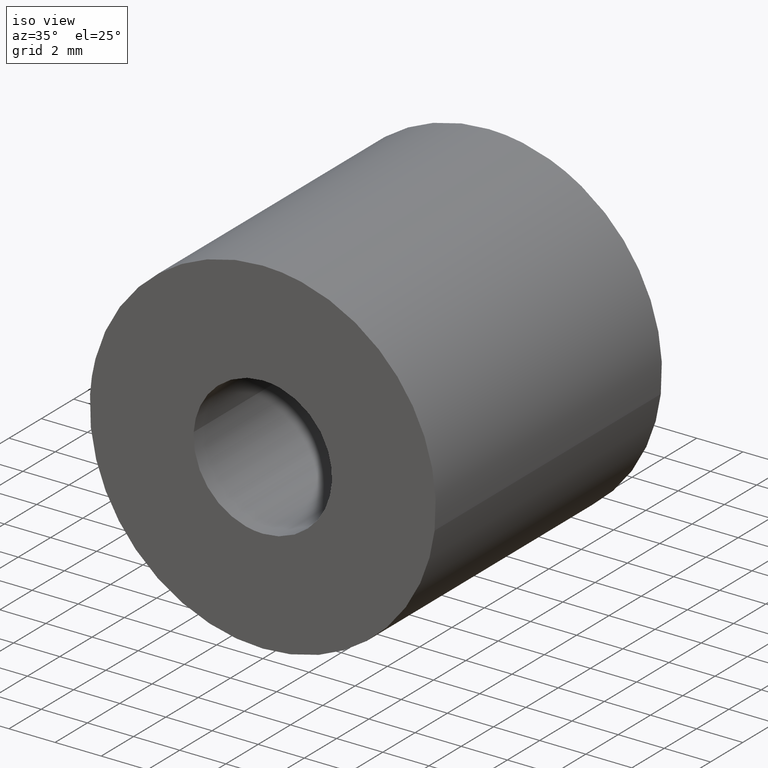
[diagram: clean part render]
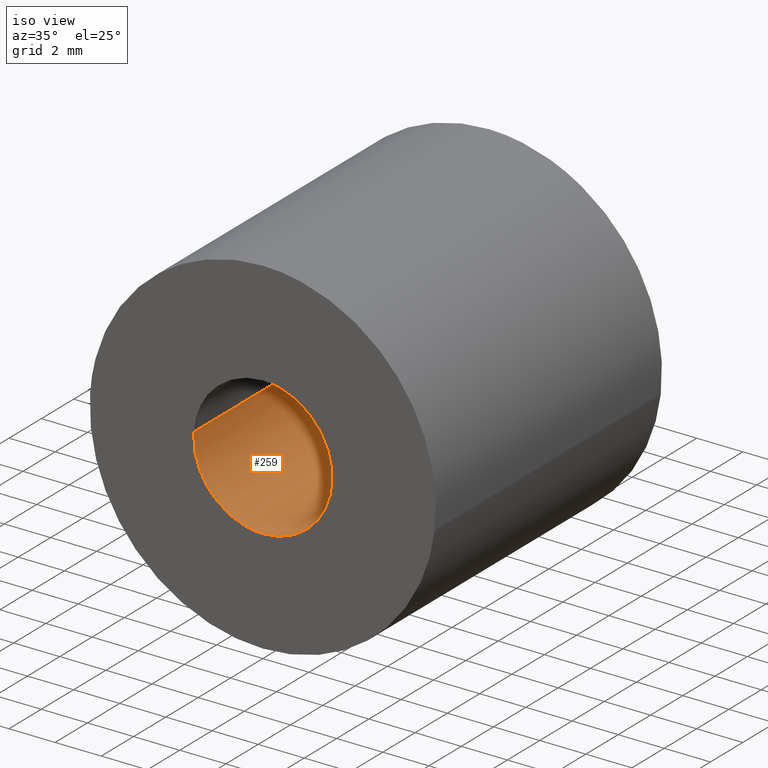
[diagram: same view with one face highlighted and labeled with its STEP entity id]
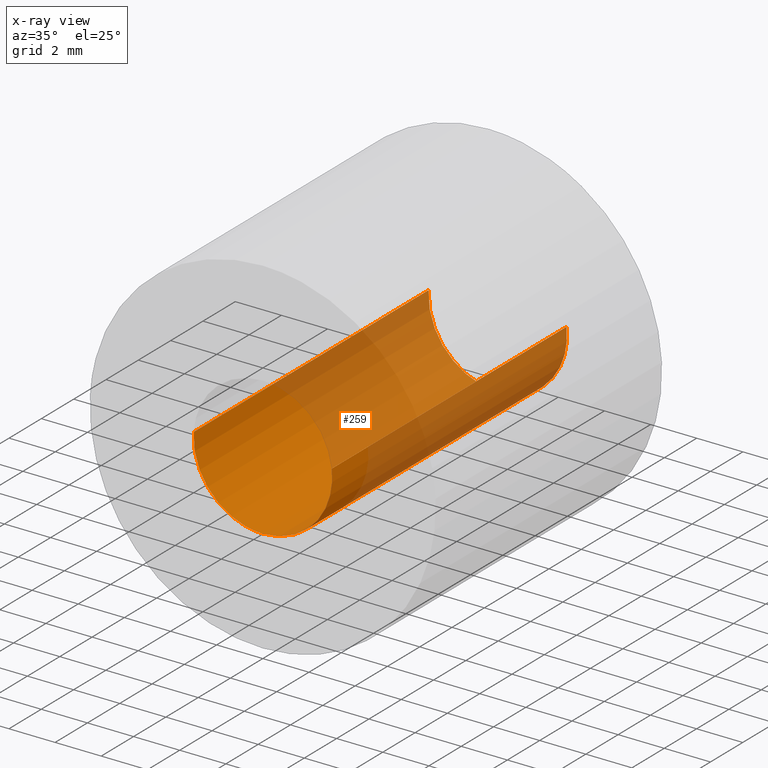
[diagram: x-ray of the same camera — body ghosted, the highlighted face saturated]
A machine part, iso view. The second image highlights one B-rep face of the part: STEP entity #259.
The next image is the same camera in x-ray: the body ghosted, the highlighted face saturated — about 61% of this face is hidden behind the body in this view.
In plain terms, the highlighted face is a freeform B-spline surface patch.
Its self-contained STEP definition (entity closure, byte-faithful):
#62=CARTESIAN_POINT('',(2.980407580306507,14.541499999999999,0.342301994226599));
#63=VERTEX_POINT('',#62);
#79=CARTESIAN_POINT('',(2.980407962932764,7.988144E-016,0.342298662684685));
#80=VERTEX_POINT('',#79);
#81=CARTESIAN_POINT('',(2.980407580306507,14.541499999999999,0.342301994226599));
#82=CARTESIAN_POINT('',(2.980407962932764,7.988144E-016,0.342298662684685));
#83=QUASI_UNIFORM_CURVE('',1,(#81,#82),.UNSPECIFIED.,.F.,.U.);
#84=EDGE_CURVE('',#63,#80,#83,.T.);
#101=CARTESIAN_POINT('',(-2.994404452605104,-8.881784E-016,0.183144681107156));
#102=VERTEX_POINT('',#101);
#116=CARTESIAN_POINT('',(-2.994404411156125,14.541499999999999,0.183145358796415));
#117=VERTEX_POINT('',#116);
#118=CARTESIAN_POINT('',(-2.994404411156125,14.541499999999999,0.183145358796415));
#119=CARTESIAN_POINT('',(-2.994404452605104,-8.881784E-016,0.183144681107156));
#120=QUASI_UNIFORM_CURVE('',1,(#118,#119),.UNSPECIFIED.,.F.,.U.);
#121=EDGE_CURVE('',#117,#102,#120,.T.);
#154=CARTESIAN_POINT('',(-2.994404395265600,14.905037500000001,0.183145618604571));
#155=CARTESIAN_POINT('',(-3.177550013870171,14.905037500000006,-2.811258776661029));
#156=CARTESIAN_POINT('',(-0.183145618604571,14.905037500000001,-2.994404395265600));
#157=CARTESIAN_POINT('',(2.811258776661029,14.905037500000006,-3.177550013870172));
#158=CARTESIAN_POINT('',(2.994404395265600,14.905037500000001,-0.183145618604571));
#159=CARTESIAN_POINT('',(3.010510915184334,14.905037500000008,0.080193654289640));
#160=CARTESIAN_POINT('',(2.980407580307141,14.905037499999999,0.342301994221081));
#161=CARTESIAN_POINT('',(-2.994404395265600,-0.372625937500001,0.183145618604571));
#162=CARTESIAN_POINT('',(-3.177550013870171,-0.372625937500001,-2.811258776661029));
#163=CARTESIAN_POINT('',(-0.183145618604571,-0.372625937500001,-2.994404395265600));
#164=CARTESIAN_POINT('',(2.811258776661029,-0.372625937500001,-3.177550013870172));
#165=CARTESIAN_POINT('',(2.994404395265600,-0.372625937500001,-0.183145618604571));
#166=CARTESIAN_POINT('',(3.010510915184334,-0.372625937500001,0.080193654289640));
#167=CARTESIAN_POINT('',(2.980407580307141,-0.372625937500001,0.342301994221081));
#175=(BOUNDED_SURFACE()B_SPLINE_SURFACE(2,1,((#154,#161),(#155,#162),(#156,#163),(#157,#164),(#158,#165),(#159,#166),(#160,#167)),.UNSPECIFIED.,.F.,.F.,.U.)B_SPLINE_SURFACE_WITH_KNOTS((3,2,2,3),(2,2),(0.0,4.970562748477139,9.941125496954278,10.537593026771541),(0.0,15.277663437500010),.UNSPECIFIED.)GEOMETRIC_REPRESENTATION_ITEM()RATIONAL_B_SPLINE_SURFACE(((1.0,1.0),(0.707106781186548,0.707106781186548),(1.0,1.0),(0.707106781186548,0.707106781186548),(1.0,1.0),(0.964852813742386,0.964852813742386),(0.938140952186599,0.938140952186599)))REPRESENTATION_ITEM('')SURFACE());
#176=CARTESIAN_POINT('',(2.990752001199406,14.541500000000060,-0.235377287183957));
#177=VERTEX_POINT('',#176);
#178=CARTESIAN_POINT('',(2.990752001199406,14.541500000000056,-0.235377287183957));
#179=CARTESIAN_POINT('',(3.000000000000000,14.541500000000003,-0.117870321023428));
#180=CARTESIAN_POINT('',(3.0,14.541499999999999,-1.836910E-016));
#181=CARTESIAN_POINT('',(3.0,14.541500000000003,0.171711705081448));
#182=CARTESIAN_POINT('',(2.980407580306508,14.541499999999997,0.342301994226599));
#190=(BOUNDED_CURVE()B_SPLINE_CURVE(2,(#178,#179,#180,#181,#182),.UNSPECIFIED.,.F.,.U.)B_SPLINE_CURVE_WITH_KNOTS((3,2,3),(0.236331300632719,0.250000000000000,0.269767755877236),.UNSPECIFIED.)CURVE()GEOMETRIC_REPRESENTATION_ITEM()RATIONAL_B_SPLINE_CURVE((0.969723356171716,0.983986122581295,1.0,0.976840633409592,0.957343736459428))REPRESENTATION_ITEM(''));
#191=EDGE_CURVE('',#177,#63,#190,.T.);
#192=ORIENTED_EDGE('',*,*,#191,.F.);
#193=CARTESIAN_POINT('',(0.0,14.541499999999999,-3.0));
#194=VERTEX_POINT('',#193);
#195=CARTESIAN_POINT('',(0.0,14.541499999999999,-3.0));
#196=CARTESIAN_POINT('',(2.773171474973844,14.541500000000008,-3.000000000000001));
#197=CARTESIAN_POINT('',(2.990752001199405,14.541500000000060,-0.235377287183957));
#205=(BOUNDED_CURVE()B_SPLINE_CURVE(2,(#195,#196,#197),.UNSPECIFIED.,.F.,.U.)B_SPLINE_CURVE_WITH_KNOTS((3,3),(0.0,0.236331300632719),.UNSPECIFIED.)CURVE()GEOMETRIC_REPRESENTATION_ITEM()RATIONAL_B_SPLINE_CURVE((1.0,0.723120658605253,0.969723356171716))REPRESENTATION_ITEM(''));
#206=EDGE_CURVE('',#194,#177,#205,.T.);
#207=ORIENTED_EDGE('',*,*,#206,.F.);
#208=CARTESIAN_POINT('',(-2.994404411156126,14.541500000000005,0.183145358796415));
#209=CARTESIAN_POINT('',(-3.000000000000000,14.541499999999997,0.091658029359136));
#210=CARTESIAN_POINT('',(-3.0,14.541499999999999,-1.836910E-016));
#211=CARTESIAN_POINT('',(-3.0,14.541499999999999,-3.0));
#212=CARTESIAN_POINT('',(0.0,14.541499999999999,-3.0));
#220=(BOUNDED_CURVE()B_SPLINE_CURVE(2,(#208,#209,#210,#211,#212),.UNSPECIFIED.,.F.,.U.)B_SPLINE_CURVE_WITH_KNOTS((3,2,3),(0.739332992183859,0.750000000000000,1.0),.UNSPECIFIED.)CURVE()GEOMETRIC_REPRESENTATION_ITEM()RATIONAL_B_SPLINE_CURVE((0.976072105844382,0.987502822982489,1.0,0.707106781186548,1.0))REPRESENTATION_ITEM(''));
#221=EDGE_CURVE('',#117,#194,#220,.T.);
#222=ORIENTED_EDGE('',*,*,#221,.F.);
#223=ORIENTED_EDGE('',*,*,#121,.T.);
#224=CARTESIAN_POINT('',(0.0,0.0,-3.0));
#225=VERTEX_POINT('',#224);
#226=CARTESIAN_POINT('',(-2.994404452605104,-8.881784E-016,0.183144681107156));
#227=CARTESIAN_POINT('',(-3.000000000000000,0.0,0.091657349769728));
#228=CARTESIAN_POINT('',(-3.0,0.0,-1.836910E-016));
#229=CARTESIAN_POINT('',(-3.0,0.0,-3.0));
#230=CARTESIAN_POINT('',(0.0,0.0,-3.0));
#238=(BOUNDED_CURVE()B_SPLINE_CURVE(2,(#226,#227,#228,#229,#230),.UNSPECIFIED.,.F.,.U.)B_SPLINE_CURVE_WITH_KNOTS((3,2,3),(0.739333070284947,0.750000000000000,1.0),.UNSPECIFIED.)CURVE()GEOMETRIC_REPRESENTATION_ITEM()RATIONAL_B_SPLINE_CURVE((0.976072273229982,0.987502914483605,1.0,0.707106781186548,1.0))REPRESENTATION_ITEM(''));
#239=EDGE_CURVE('',#102,#225,#238,.T.);
#240=ORIENTED_EDGE('',*,*,#239,.T.);
#241=CARTESIAN_POINT('',(0.0,0.0,-3.0));
#242=CARTESIAN_POINT('',(3.0,0.0,-3.0));
#243=CARTESIAN_POINT('',(3.0,0.0,-1.836910E-016));
#244=CARTESIAN_POINT('',(3.0,0.0,0.171710022864526));
#245=CARTESIAN_POINT('',(2.980407962932764,7.988144E-016,0.342298662684685));
#253=(BOUNDED_CURVE()B_SPLINE_CURVE(2,(#241,#242,#243,#244,#245),.UNSPECIFIED.,.F.,.U.)B_SPLINE_CURVE_WITH_KNOTS((3,2,3),(0.0,0.250000000000000,0.269767566702437),.UNSPECIFIED.)CURVE()GEOMETRIC_REPRESENTATION_ITEM()RATIONAL_B_SPLINE_CURVE((1.0,0.707106781186548,1.0,0.976840855041655,0.957344109625193))REPRESENTATION_ITEM(''));
#254=EDGE_CURVE('',#225,#80,#253,.T.);
#255=ORIENTED_EDGE('',*,*,#254,.T.);
#256=ORIENTED_EDGE('',*,*,#84,.F.);
#257=EDGE_LOOP('',(#192,#207,#222,#223,#240,#255,#256));
#258=FACE_OUTER_BOUND('',#257,.T.);
#259=ADVANCED_FACE('',(#258),#175,.F.);